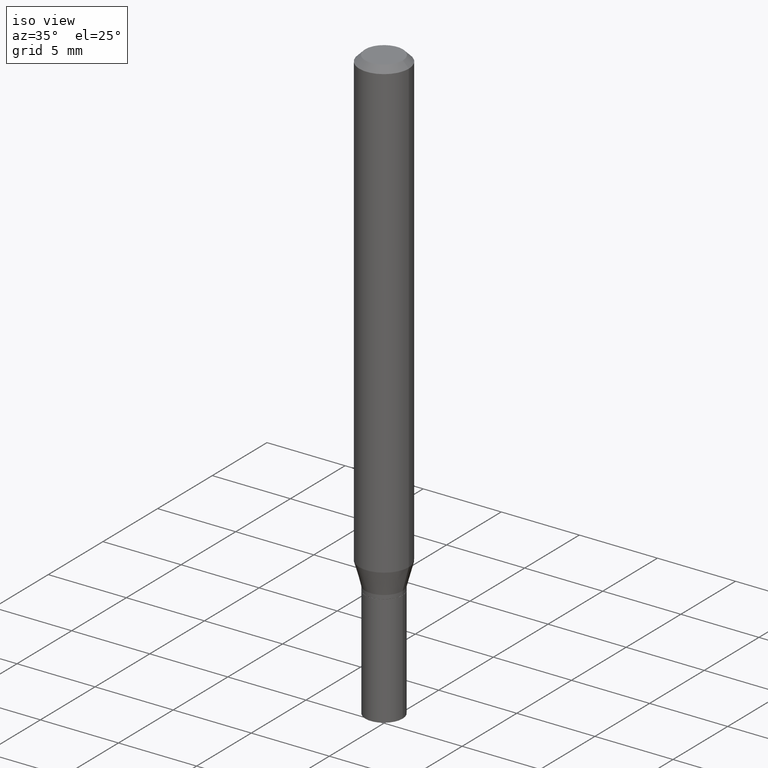
[diagram: clean part render]
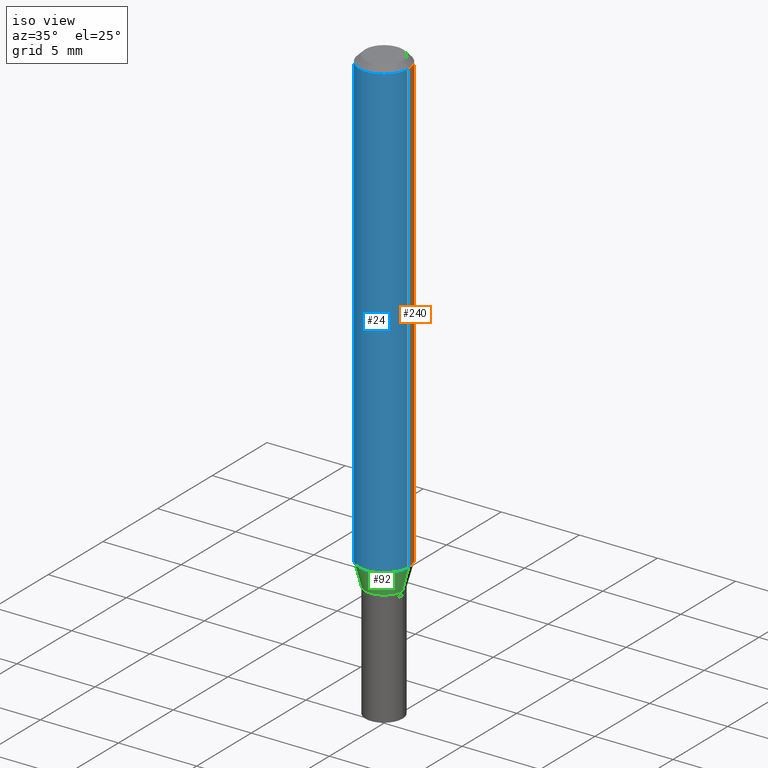
[diagram: same view with three faces highlighted in distinct colors, each labeled with its STEP entity id]
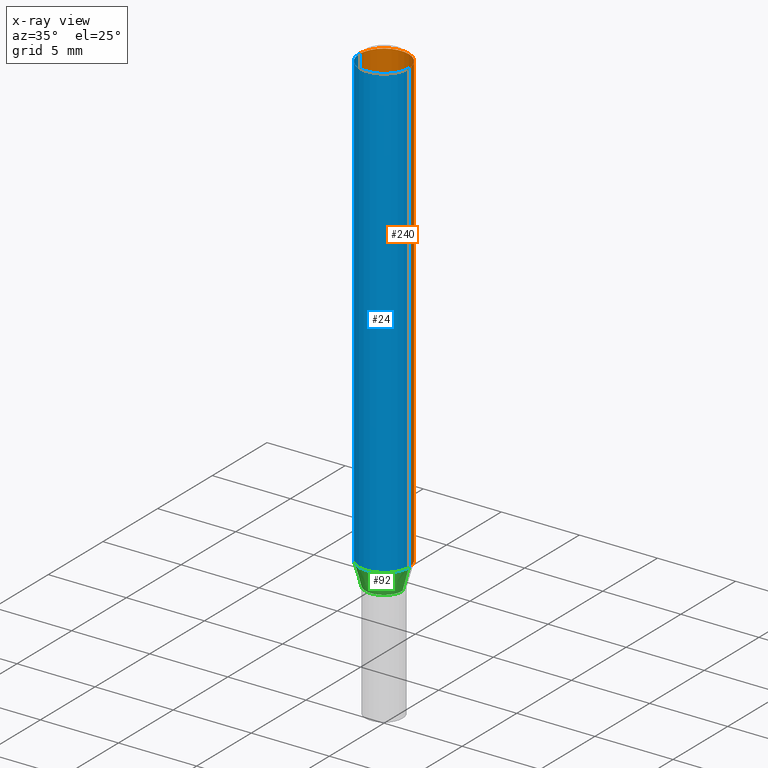
[diagram: x-ray of the same camera — body ghosted, the three highlighted faces saturated]
A machine part, iso view with three faces highlighted in distinct colors.
The next image is the same camera in x-ray (body ghosted, the three faces saturated) — at least one of them is partly hidden behind the body in this view.
Their STEP definitions:

[orange] entity #240 — the highlighted cylindrical surface (edge-blend (fillet) strip) has radius 1.5875 mm, axis along (-0, 0, 1).
#10 = EDGE_CURVE ( 'NONE', #205, #209, #385, .T. ) ;
#20 = CIRCLE ( 'NONE', #350, 0.06250000000000001388 ) ;
#22 = CARTESIAN_POINT ( 'NONE',  ( 2.814196610882909100E-29, -4.017926920957599786E-15, -1.150780007401925431 ) ) ;
#38 = DIRECTION ( 'NONE',  ( 1.000000000000000000, -6.982962677686262766E-15, 0.000000000000000000 ) ) ;
#54 = AXIS2_PLACEMENT_3D ( 'NONE', #22, #165, #38 ) ;
#62 = VECTOR ( 'NONE', #323, 39.37007874015748143 ) ;
#68 = CARTESIAN_POINT ( 'NONE',  ( 3.668203209277705088E-31, -5.237222008264718399E-17, -0.01499999999999999944 ) ) ;
#94 = ORIENTED_EDGE ( 'NONE', *, *, #122, .F. ) ;
#100 = DIRECTION ( 'NONE',  ( -2.445468806185136877E-29, 3.491481338843145188E-15, 1.000000000000000000 ) ) ;
#102 = VERTEX_POINT ( 'NONE', #389 ) ;
#107 = DIRECTION ( 'NONE',  ( -2.445468806185136597E-29, 3.491481338843145583E-15, 1.000000000000000000 ) ) ;
#121 = VERTEX_POINT ( 'NONE', #144 ) ;
#122 = EDGE_CURVE ( 'NONE', #205, #102, #436, .T. ) ;
#125 = CARTESIAN_POINT ( 'NONE',  ( 0.000000000000000000, 0.000000000000000000, 0.000000000000000000 ) ) ;
#144 = CARTESIAN_POINT ( 'NONE',  ( -0.06250000000000002776, -1.591060360670060817E-15, -0.01499999999999999944 ) ) ;
#145 = EDGE_CURVE ( 'NONE', #102, #121, #20, .T. ) ;
#165 = DIRECTION ( 'NONE',  ( -2.445468806185136597E-29, 3.491481338843145583E-15, 1.000000000000000000 ) ) ;
#193 = ORIENTED_EDGE ( 'NONE', *, *, #145, .F. ) ;
#198 = LINE ( 'NONE', #421, #443 ) ;
#205 = VERTEX_POINT ( 'NONE', #366 ) ;
#209 = VERTEX_POINT ( 'NONE', #330 ) ;
#240 = ADVANCED_FACE ( 'NONE', ( #336 ), #438, .T. ) ;
#301 = DIRECTION ( 'NONE',  ( 1.000000000000000000, -6.982962677686265922E-15, 4.876176775795935232E-29 ) ) ;
#323 = DIRECTION ( 'NONE',  ( -2.445468806185136877E-29, 3.491481338843145188E-15, 1.000000000000000000 ) ) ;
#330 = CARTESIAN_POINT ( 'NONE',  ( -0.06250000000000000000, -3.573837711107537170E-15, -1.150780007401925431 ) ) ;
#334 = AXIS2_PLACEMENT_3D ( 'NONE', #125, #404, #301 ) ;
#336 = FACE_OUTER_BOUND ( 'NONE', #387, .T. ) ;
#348 = ORIENTED_EDGE ( 'NONE', *, *, #10, .T. ) ;
#350 = AXIS2_PLACEMENT_3D ( 'NONE', #68, #107, #466 ) ;
#357 = CARTESIAN_POINT ( 'NONE',  ( 0.06250000000000001388, -4.364351673553917187E-16, 3.047610484872460221E-30 ) ) ;
#366 = CARTESIAN_POINT ( 'NONE',  ( 0.06250000000000000000, -4.454362088312991456E-15, -1.150780007401925431 ) ) ;
#377 = ORIENTED_EDGE ( 'NONE', *, *, #424, .T. ) ;
#385 = CIRCLE ( 'NONE', #54, 0.06250000000000000000 ) ;
#387 = EDGE_LOOP ( 'NONE', ( #348, #377, #193, #94 ) ) ;
#389 = CARTESIAN_POINT ( 'NONE',  ( 0.06250000000000001388, -4.888073874380389458E-16, -0.01499999999999999944 ) ) ;
#404 = DIRECTION ( 'NONE',  ( -2.445468806185136597E-29, 3.491481338843145583E-15, 1.000000000000000000 ) ) ;
#421 = CARTESIAN_POINT ( 'NONE',  ( -0.06250000000000001388, 4.440892098500627148E-16, -3.074334431409316814E-30 ) ) ;
#424 = EDGE_CURVE ( 'NONE', #209, #121, #198, .T. ) ;
#436 = LINE ( 'NONE', #357, #62 ) ;
#438 = CYLINDRICAL_SURFACE ( 'NONE', #334, 0.06250000000000001388 ) ;
#443 = VECTOR ( 'NONE', #100, 39.37007874015748143 ) ;
#466 = DIRECTION ( 'NONE',  ( 1.000000000000000000, -6.982962677686267499E-15, 0.000000000000000000 ) ) ;

[blue] entity #24 — the highlighted cylindrical surface (edge-blend (fillet) strip) has radius 1.5875 mm, axis along (-0, 0, 1).
#16 = ORIENTED_EDGE ( 'NONE', *, *, #55, .T. ) ;
#24 = ADVANCED_FACE ( 'NONE', ( #187 ), #391, .T. ) ;
#32 = DIRECTION ( 'NONE',  ( -2.445468806185136597E-29, 3.491481338843145583E-15, 1.000000000000000000 ) ) ;
#53 = DIRECTION ( 'NONE',  ( 1.000000000000000000, -6.982962677686267499E-15, 0.000000000000000000 ) ) ;
#55 = EDGE_CURVE ( 'NONE', #209, #205, #246, .T. ) ;
#62 = VECTOR ( 'NONE', #323, 39.37007874015748143 ) ;
#100 = DIRECTION ( 'NONE',  ( -2.445468806185136877E-29, 3.491481338843145188E-15, 1.000000000000000000 ) ) ;
#102 = VERTEX_POINT ( 'NONE', #389 ) ;
#115 = DIRECTION ( 'NONE',  ( 1.000000000000000000, -6.982962677686265922E-15, 4.876176775795935232E-29 ) ) ;
#116 = CARTESIAN_POINT ( 'NONE',  ( 2.814196610882909100E-29, -4.017926920957599786E-15, -1.150780007401925431 ) ) ;
#121 = VERTEX_POINT ( 'NONE', #144 ) ;
#122 = EDGE_CURVE ( 'NONE', #205, #102, #436, .T. ) ;
#132 = ORIENTED_EDGE ( 'NONE', *, *, #424, .F. ) ;
#144 = CARTESIAN_POINT ( 'NONE',  ( -0.06250000000000002776, -1.591060360670060817E-15, -0.01499999999999999944 ) ) ;
#150 = CIRCLE ( 'NONE', #313, 0.06250000000000001388 ) ;
#187 = FACE_OUTER_BOUND ( 'NONE', #281, .T. ) ;
#198 = LINE ( 'NONE', #421, #443 ) ;
#202 = CARTESIAN_POINT ( 'NONE',  ( 3.668203209277705088E-31, -5.237222008264718399E-17, -0.01499999999999999944 ) ) ;
#205 = VERTEX_POINT ( 'NONE', #366 ) ;
#207 = AXIS2_PLACEMENT_3D ( 'NONE', #219, #32, #115 ) ;
#209 = VERTEX_POINT ( 'NONE', #330 ) ;
#219 = CARTESIAN_POINT ( 'NONE',  ( 0.000000000000000000, 0.000000000000000000, 0.000000000000000000 ) ) ;
#246 = CIRCLE ( 'NONE', #298, 0.06250000000000000000 ) ;
#247 = ORIENTED_EDGE ( 'NONE', *, *, #122, .T. ) ;
#281 = EDGE_LOOP ( 'NONE', ( #132, #16, #247, #374 ) ) ;
#289 = DIRECTION ( 'NONE',  ( -2.445468806185136597E-29, 3.491481338843145583E-15, 1.000000000000000000 ) ) ;
#298 = AXIS2_PLACEMENT_3D ( 'NONE', #116, #289, #364 ) ;
#313 = AXIS2_PLACEMENT_3D ( 'NONE', #202, #376, #53 ) ;
#323 = DIRECTION ( 'NONE',  ( -2.445468806185136877E-29, 3.491481338843145188E-15, 1.000000000000000000 ) ) ;
#330 = CARTESIAN_POINT ( 'NONE',  ( -0.06250000000000000000, -3.573837711107537170E-15, -1.150780007401925431 ) ) ;
#357 = CARTESIAN_POINT ( 'NONE',  ( 0.06250000000000001388, -4.364351673553917187E-16, 3.047610484872460221E-30 ) ) ;
#364 = DIRECTION ( 'NONE',  ( 1.000000000000000000, -6.982962677686262766E-15, 0.000000000000000000 ) ) ;
#366 = CARTESIAN_POINT ( 'NONE',  ( 0.06250000000000000000, -4.454362088312991456E-15, -1.150780007401925431 ) ) ;
#374 = ORIENTED_EDGE ( 'NONE', *, *, #456, .F. ) ;
#376 = DIRECTION ( 'NONE',  ( -2.445468806185136597E-29, 3.491481338843145583E-15, 1.000000000000000000 ) ) ;
#389 = CARTESIAN_POINT ( 'NONE',  ( 0.06250000000000001388, -4.888073874380389458E-16, -0.01499999999999999944 ) ) ;
#391 = CYLINDRICAL_SURFACE ( 'NONE', #207, 0.06250000000000001388 ) ;
#421 = CARTESIAN_POINT ( 'NONE',  ( -0.06250000000000001388, 4.440892098500627148E-16, -3.074334431409316814E-30 ) ) ;
#424 = EDGE_CURVE ( 'NONE', #209, #121, #198, .T. ) ;
#436 = LINE ( 'NONE', #357, #62 ) ;
#443 = VECTOR ( 'NONE', #100, 39.37007874015748143 ) ;
#456 = EDGE_CURVE ( 'NONE', #121, #102, #150, .T. ) ;

[green] entity #92 — the highlighted conical surface has half-angle 15 deg.
#2 = EDGE_CURVE ( 'NONE', #229, #205, #67, .T. ) ;
#12 = CARTESIAN_POINT ( 'NONE',  ( 0.04689999999999994174, -4.548701888244848770E-15, -1.209000000000000075 ) ) ;
#25 = ORIENTED_EDGE ( 'NONE', *, *, #55, .F. ) ;
#41 = DIRECTION ( 'NONE',  ( 1.000000000000000000, -6.982962677686275388E-15, 0.000000000000000000 ) ) ;
#55 = EDGE_CURVE ( 'NONE', #209, #205, #246, .T. ) ;
#61 = EDGE_LOOP ( 'NONE', ( #136, #160, #447, #25 ) ) ;
#67 = LINE ( 'NONE', #379, #215 ) ;
#70 = EDGE_CURVE ( 'NONE', #242, #229, #206, .T. ) ;
#92 = ADVANCED_FACE ( 'NONE', ( #179 ), #255, .T. ) ;
#109 = CARTESIAN_POINT ( 'NONE',  ( 2.956571786677830083E-29, -4.221200938661362868E-15, -1.209000000000000075 ) ) ;
#112 = AXIS2_PLACEMENT_3D ( 'NONE', #181, #362, #41 ) ;
#116 = CARTESIAN_POINT ( 'NONE',  ( 2.814196610882909100E-29, -4.017926920957599786E-15, -1.150780007401925431 ) ) ;
#118 = VECTOR ( 'NONE', #286, 39.37007874015748854 ) ;
#136 = ORIENTED_EDGE ( 'NONE', *, *, #138, .F. ) ;
#138 = EDGE_CURVE ( 'NONE', #242, #209, #322, .T. ) ;
#146 = CARTESIAN_POINT ( 'NONE',  ( -0.04689999999999994174, -3.887956395589876295E-15, -1.209000000000000075 ) ) ;
#148 = DIRECTION ( 'NONE',  ( 1.000000000000000000, -6.982962677686275388E-15, 0.000000000000000000 ) ) ;
#149 = DIRECTION ( 'NONE',  ( -2.445468806185136597E-29, 3.491481338843145583E-15, 1.000000000000000000 ) ) ;
#160 = ORIENTED_EDGE ( 'NONE', *, *, #70, .T. ) ;
#179 = FACE_OUTER_BOUND ( 'NONE', #61, .T. ) ;
#181 = CARTESIAN_POINT ( 'NONE',  ( 2.956571786677830083E-29, -4.221200938661362868E-15, -1.209000000000000075 ) ) ;
#205 = VERTEX_POINT ( 'NONE', #366 ) ;
#206 = CIRCLE ( 'NONE', #112, 0.04689999999999994174 ) ;
#209 = VERTEX_POINT ( 'NONE', #330 ) ;
#215 = VECTOR ( 'NONE', #342, 39.37007874015748854 ) ;
#229 = VERTEX_POINT ( 'NONE', #12 ) ;
#230 = AXIS2_PLACEMENT_3D ( 'NONE', #109, #149, #148 ) ;
#242 = VERTEX_POINT ( 'NONE', #266 ) ;
#246 = CIRCLE ( 'NONE', #298, 0.06250000000000000000 ) ;
#255 = CONICAL_SURFACE ( 'NONE', #230, 0.04689999999999994174, 0.2617993877991499074 ) ;
#266 = CARTESIAN_POINT ( 'NONE',  ( -0.04689999999999994174, -3.730897053348706338E-15, -1.209000000000000075 ) ) ;
#286 = DIRECTION ( 'NONE',  ( -0.2588190451025211836, 5.211531920934547886E-15, 0.9659258262890679791 ) ) ;
#289 = DIRECTION ( 'NONE',  ( -2.445468806185136597E-29, 3.491481338843145583E-15, 1.000000000000000000 ) ) ;
#298 = AXIS2_PLACEMENT_3D ( 'NONE', #116, #289, #364 ) ;
#322 = LINE ( 'NONE', #146, #118 ) ;
#330 = CARTESIAN_POINT ( 'NONE',  ( -0.06250000000000000000, -3.573837711107537170E-15, -1.150780007401925431 ) ) ;
#342 = DIRECTION ( 'NONE',  ( 0.2588190451025211836, 1.565188264969622559E-15, 0.9659258262890679791 ) ) ;
#362 = DIRECTION ( 'NONE',  ( -2.445468806185136597E-29, 3.491481338843145583E-15, 1.000000000000000000 ) ) ;
#364 = DIRECTION ( 'NONE',  ( 1.000000000000000000, -6.982962677686262766E-15, 0.000000000000000000 ) ) ;
#366 = CARTESIAN_POINT ( 'NONE',  ( 0.06250000000000000000, -4.454362088312991456E-15, -1.150780007401925431 ) ) ;
#379 = CARTESIAN_POINT ( 'NONE',  ( 0.04689999999999994174, -4.548701888244848770E-15, -1.209000000000000075 ) ) ;
#447 = ORIENTED_EDGE ( 'NONE', *, *, #2, .T. ) ;